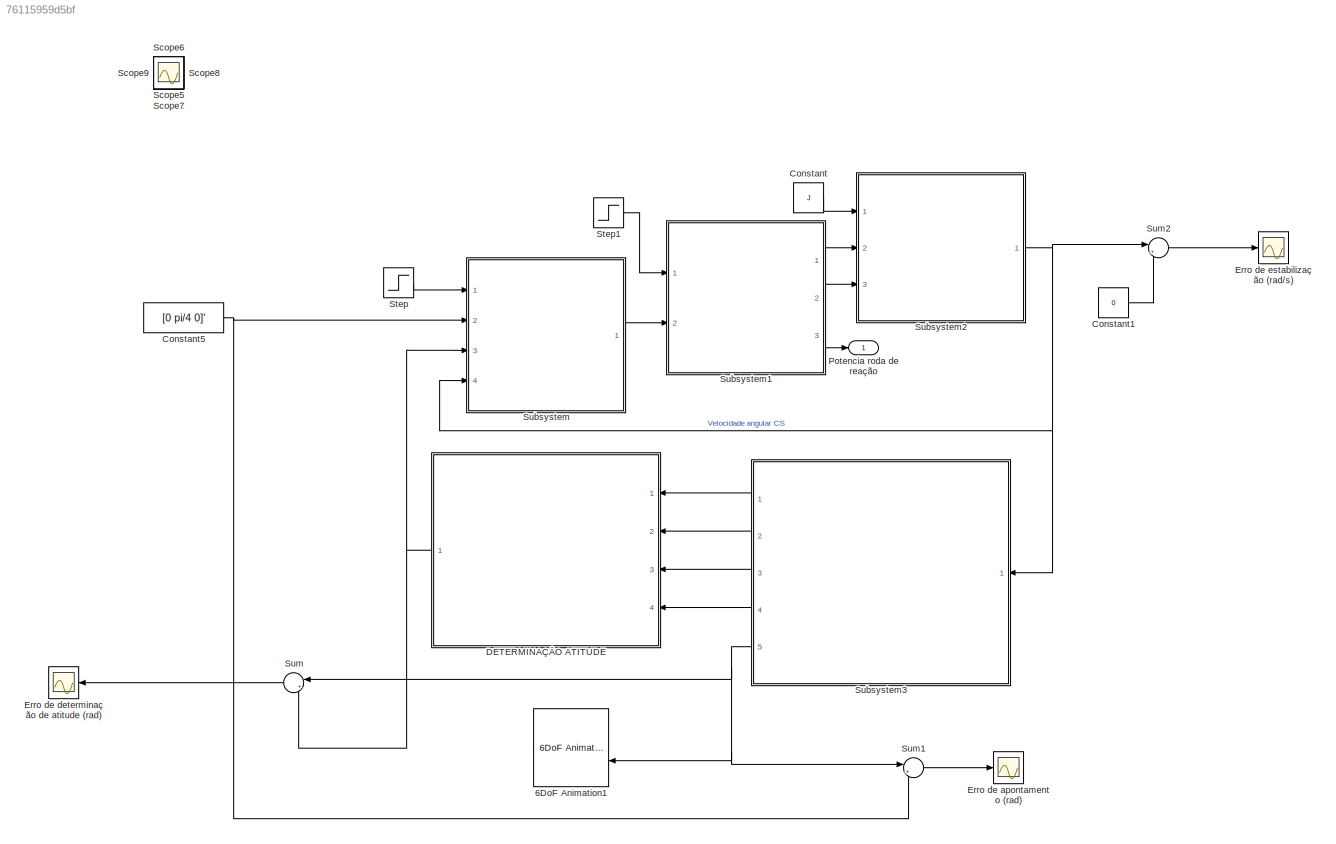
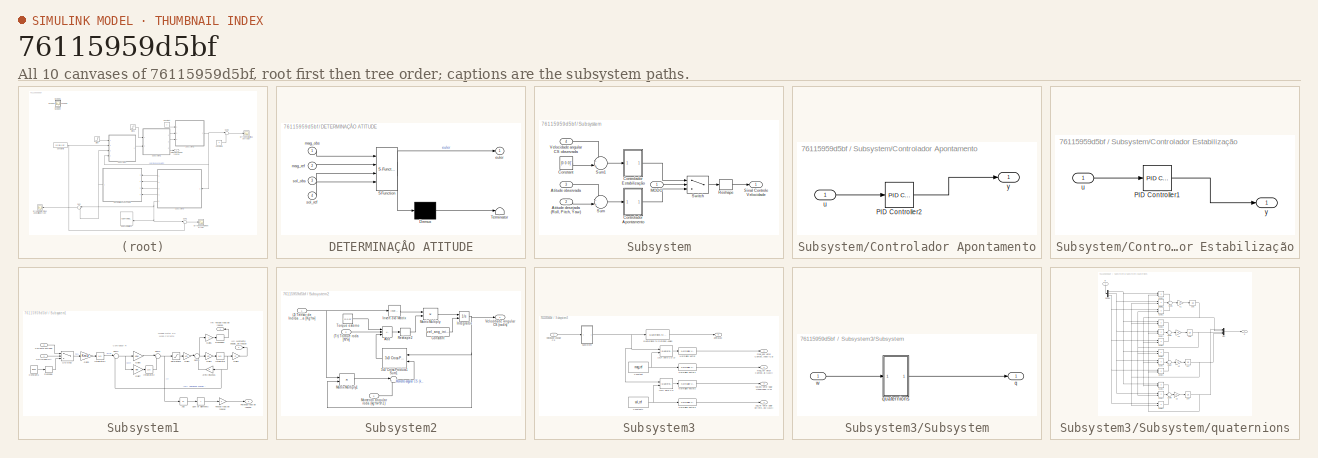
[diagram: thumbnail index - all 10 canvases of the model, root first then tree order]
MODEL slx_76115959d5bf
KIND model
CONFIG AbsTol = auto
CONFIG EnableMultiTasking = off
CONFIG FixedStep = auto
CONFIG MaxStep = auto
CONFIG MinStep = auto
CONFIG RelTol = 1e-4
CONFIG SampleTimeConstraint = Unconstrained
CONFIG SolverName = ode23t
CONFIG StartTime = 0.0
CONFIG StopTime = 250
BLOCK [Reference] 6DoF Animation1  REF=aerolibanim/6DoF Animation
  Commented = on
  Ports = [2]
  SourceBlock = aerolibanim/6DoF Animation
  SourceProductBaseCode = AE
  SourceType = 6DoF_Animation
BLOCK [Constant] Constant
  Value = J
BLOCK [Constant] Constant1
  Value = 0
BLOCK [Constant] Constant5
  Value = [0 pi/4 0]'
BLOCK [SubSystem] DETERMINAÇÂO ATITUDE
  ErrorFcn = Stateflow.Translate.translate
  PermitHierarchicalResolution = ExplicitOnly
  Ports = [4, 1]
  RequestExecContextInheritance = off
  SFBlockType = MATLAB Function
  SystemSampleTime = 1e-1
  TreatAsAtomicUnit = on
BLOCK [Demux] DETERMINAÇÂO ATITUDE/ Demux 
  Outputs = 1
  Ports = [1, 1]
BLOCK [S-Function] DETERMINAÇÂO ATITUDE/ SFunction 
  EnableBusSupport = on
  FunctionName = sf_sfun
  PortCounts = [4 2]
  Ports = [4, 2]
  SFcnIsStateOwnerBlock = off
  SFunctionDeploymentMode = off
  Tag = Stateflow S-Function 1
BLOCK [Terminator] DETERMINAÇÂO ATITUDE/ Terminator 
BLOCK [Outport] DETERMINAÇÂO ATITUDE/euler
BLOCK [Inport] DETERMINAÇÂO ATITUDE/mag_obs
BLOCK [Inport] DETERMINAÇÂO ATITUDE/mag_ref
  Port = 2
BLOCK [Inport] DETERMINAÇÂO ATITUDE/sol_obs
  Port = 3
BLOCK [Inport] DETERMINAÇÂO ATITUDE/sol_ref
  Port = 4
BLOCK [Scope] Erro de apontamento (rad)
  Floating = off
  NumInputPorts = 1
  Ports = [1]
  ScopeSpecificationString = Simulink.scopes.TimeScopeBlockCfg('CurrentConfiguration', extmgr.ConfigurationSet(extmgr.Configuration('Core','General UI',true),extmgr.Configuration('Core','Source UI',true),extmgr.Configuration('Sources','WiredSimulink',true,'DataLoggingVariableName','ScopeData1'),extmgr.Configuration('Visuals','Time Domain',true,'SerializedDisplays',{struct('MinYLimReal','-0.000056','MaxYLimReal','-0.000001','Y...<+1441ch>
BLOCK [Scope] Erro de determinação de atitude (rad)
  Floating = off
  NumInputPorts = 1
  Ports = [1]
  ScopeSpecificationString = Simulink.scopes.TimeScopeBlockCfg('CurrentConfiguration', extmgr.ConfigurationSet(extmgr.Configuration('Core','General UI',true),extmgr.Configuration('Core','Source UI',true),extmgr.Configuration('Sources','WiredSimulink',true,'DataLoggingVariableName','ScopeData4'),extmgr.Configuration('Visuals','Time Domain',true,'SerializedDisplays',{struct('MinYLimReal','-0.01352','MaxYLimReal','0.01986','YLab...<+1914ch>
BLOCK [Scope] Erro de estabilização (rad//s)
  Floating = off
  NumInputPorts = 1
  Ports = [1]
  ScopeSpecificationString = Simulink.scopes.TimeScopeBlockCfg('CurrentConfiguration', extmgr.ConfigurationSet(extmgr.Configuration('Core','General UI',true),extmgr.Configuration('Core','Source UI',true),extmgr.Configuration('Sources','WiredSimulink',true,'DataLoggingVariableName','ScopeData2'),extmgr.Configuration('Visuals','Time Domain',true,'SerializedDisplays',{struct('MinYLimReal','-0.14671','MaxYLimReal','0.21035','YLab...<+1779ch>
BLOCK [Outport] Potencia roda de reação
BLOCK [Scope] Scope
  Floating = off
  IOType = viewer
  NumInputPorts = 1
  Ports = []
  ScopeSpecificationString = Simulink.scopes.TimeScopeBlockCfg('CurrentConfiguration', extmgr.ConfigurationSet(extmgr.Configuration('Core','General UI',true),extmgr.Configuration('Core','Source UI',true),extmgr.Configuration('Sources','WiredSimulink',true),extmgr.Configuration('Visuals','Time Domain',true,'SerializedDisplays',{struct('MinYLimReal','0.785384','MaxYLimReal','0.7854','YLabelReal','','MinYLimMag','0.785384','MaxY...<+1853ch>
BLOCK [Scope] Scope1
  Floating = off
  IOType = viewer
  NumInputPorts = 1
  Ports = []
  ScopeSpecificationString = Simulink.scopes.TimeScopeBlockCfg('CurrentConfiguration', extmgr.ConfigurationSet(extmgr.Configuration('Core','General UI',true),extmgr.Configuration('Core','Source UI',true),extmgr.Configuration('Sources','WiredSimulink',true,'DataLoggingVariableName','ScopeData1'),extmgr.Configuration('Visuals','Time Domain',true,'SerializedDisplays',{struct('MinYLimReal','-0.09817','MaxYLimReal','0.88357','YLab...<+1405ch>
BLOCK [Scope] Scope2
  Floating = off
  IOType = viewer
  NumInputPorts = 1
  Ports = []
  ScopeSpecificationString = Simulink.scopes.TimeScopeBlockCfg('CurrentConfiguration', extmgr.ConfigurationSet(extmgr.Configuration('Core','General UI',true),extmgr.Configuration('Core','Source UI',true),extmgr.Configuration('Sources','WiredSimulink',true,'DataLoggingVariableName','ScopeData2'),extmgr.Configuration('Visuals','Time Domain',true,'SerializedDisplays',{struct('MinYLimReal','-0.05264','MaxYLimReal','0.09296','YLab...<+1833ch>
BLOCK [Scope] Scope3
  Floating = off
  IOType = viewer
  NumInputPorts = 1
  Ports = []
  ScopeSpecificationString = Simulink.scopes.TimeScopeBlockCfg('CurrentConfiguration', extmgr.ConfigurationSet(extmgr.Configuration('Core','General UI',true),extmgr.Configuration('Core','Source UI',true),extmgr.Configuration('Sources','WiredSimulink',true,'DataLoggingVariableName','ScopeData3'),extmgr.Configuration('Visuals','Time Domain',true,'SerializedDisplays',{struct('MinYLimReal','-0.00128','MaxYLimReal','0.00322','YLab...<+1432ch>
BLOCK [Scope] Scope4
  Floating = off
  IOType = viewer
  NumInputPorts = 1
  Ports = []
  ScopeSpecificationString = Simulink.scopes.TimeScopeBlockCfg('CurrentConfiguration', extmgr.ConfigurationSet(extmgr.Configuration('Core','General UI',true),extmgr.Configuration('Core','Source UI',true),extmgr.Configuration('Sources','WiredSimulink',true,'DataLoggingVariableName','ScopeData4'),extmgr.Configuration('Visuals','Time Domain',true,'SerializedDisplays',{struct('MinYLimReal','-0.00046','MaxYLimReal','0.00047','YLab...<+1432ch>
BLOCK [Scope] Scope5
  Floating = off
  IOType = viewer
  NumInputPorts = 1
  Ports = []
  ScopeSpecificationString = Simulink.scopes.TimeScopeBlockCfg('CurrentConfiguration', extmgr.ConfigurationSet(extmgr.Configuration('Core','General UI',true),extmgr.Configuration('Core','Source UI',true),extmgr.Configuration('Sources','WiredSimulink',true,'DataLoggingVariableName','ScopeData5'),extmgr.Configuration('Visuals','Time Domain',true,'SerializedDisplays',{struct('MinYLimReal','-3.9236','MaxYLimReal','3.92331','YLabe...<+1836ch>
BLOCK [Scope] Scope6
  Floating = off
  IOType = viewer
  NumInputPorts = 1
  Ports = []
  ScopeSpecificationString = Simulink.scopes.TimeScopeBlockCfg('CurrentConfiguration', extmgr.ConfigurationSet(extmgr.Configuration('Core','General UI',true),extmgr.Configuration('Core','Source UI',true),extmgr.Configuration('Sources','WiredSimulink',true,'DataLoggingVariableName','ScopeData6'),extmgr.Configuration('Visuals','Time Domain',true,'SerializedDisplays',{struct('MinYLimReal','-0.125','MaxYLimReal','1.125','YLabelRe...<+1351ch>
BLOCK [Scope] Scope7
  Floating = off
  IOType = viewer
  NumInputPorts = 1
  Ports = []
  ScopeSpecificationString = Simulink.scopes.TimeScopeBlockCfg('CurrentConfiguration', extmgr.ConfigurationSet(extmgr.Configuration('Core','General UI',true),extmgr.Configuration('Core','Source UI',true),extmgr.Configuration('Sources','WiredSimulink',true,'DataLoggingVariableName','ScopeData7'),extmgr.Configuration('Visuals','Time Domain',true,'SerializedDisplays',{struct('MinYLimReal','-0.14575','MaxYLimReal','0.20176','YLab...<+1813ch>
BLOCK [Scope] Scope8
  Floating = off
  IOType = viewer
  NumInputPorts = 1
  Ports = []
  ScopeSpecificationString = Simulink.scopes.TimeScopeBlockCfg('CurrentConfiguration', extmgr.ConfigurationSet(extmgr.Configuration('Core','General UI',true),extmgr.Configuration('Core','Source UI',true),extmgr.Configuration('Sources','WiredSimulink',true,'DataLoggingVariableName','ScopeData8'),extmgr.Configuration('Visuals','Time Domain',true,'SerializedDisplays',{struct('MinYLimReal','-7.79949','MaxYLimReal','7.84291','YLab...<+1436ch>
BLOCK [Scope] Scope9
  Floating = off
  IOType = viewer
  NumInputPorts = 1
  Ports = []
  ScopeSpecificationString = Simulink.scopes.TimeScopeBlockCfg('CurrentConfiguration', extmgr.ConfigurationSet(extmgr.Configuration('Core','General UI',true),extmgr.Configuration('Core','Source UI',true),extmgr.Configuration('Sources','WiredSimulink',true,'DataLoggingVariableName','ScopeData9'),extmgr.Configuration('Visuals','Time Domain',true,'SerializedDisplays',{struct('MinYLimReal','-0.12353','MaxYLimReal','0.06036','YLab...<+1429ch>
BLOCK [Step] Step
  After = 0
  Before = 1
  SampleTime = 0
  Time = 130
BLOCK [Step] Step1
  SampleTime = 0
  Time = 10
BLOCK [SubSystem] Subsystem
  Ports = [4, 1]
  RequestExecContextInheritance = off
BLOCK [Inport] Subsystem/Atitude desejada (Roll, Pitch, Yaw)
  Port = 2
BLOCK [Inport] Subsystem/Atitude observada
  Port = 3
BLOCK [Constant] Subsystem/Constant
  Value = [0 0 0]'
BLOCK [SubSystem] Subsystem/Controlador Apontamento
  Ports = [1, 1]
  RequestExecContextInheritance = off
BLOCK [Reference] Subsystem/Controlador Apontamento/PID Controller2  REF=pid_lib/PID Controller
  Ports = [1, 1]
  SourceBlock = pid_lib/PID Controller
  SourceProductBaseCode = SL
  SourceType = PID 1dof
BLOCK [Inport] Subsystem/Controlador Apontamento/u
BLOCK [Outport] Subsystem/Controlador Apontamento/y
BLOCK [SubSystem] Subsystem/Controlador Estabilização
  Ports = [1, 1]
  RequestExecContextInheritance = off
BLOCK [Reference] Subsystem/Controlador Estabilização/PID Controller1  REF=pid_lib/PID Controller
  Ports = [1, 1]
  SourceBlock = pid_lib/PID Controller
  SourceProductBaseCode = SL
  SourceType = PID 1dof
BLOCK [Inport] Subsystem/Controlador Estabilização/u
BLOCK [Outport] Subsystem/Controlador Estabilização/y
BLOCK [Inport] Subsystem/MODO
BLOCK [Reshape] Subsystem/Reshape
  OutputDimensionality = Column vector (2-D)
  Ports = [1, 1]
BLOCK [Outport] Subsystem/Sinal Controle Velocidade
BLOCK [Sum] Subsystem/Sum
  Inputs = -+|
  Ports = [2, 1]
BLOCK [Sum] Subsystem/Sum1
  Inputs = -+|
  Ports = [2, 1]
BLOCK [Switch] Subsystem/Switch
  Criteria = u2 > Threshold
  InputSameDT = off
  SaturateOnIntegerOverflow = off
BLOCK [Inport] Subsystem/Velocidade angular CS observada
  Port = 4
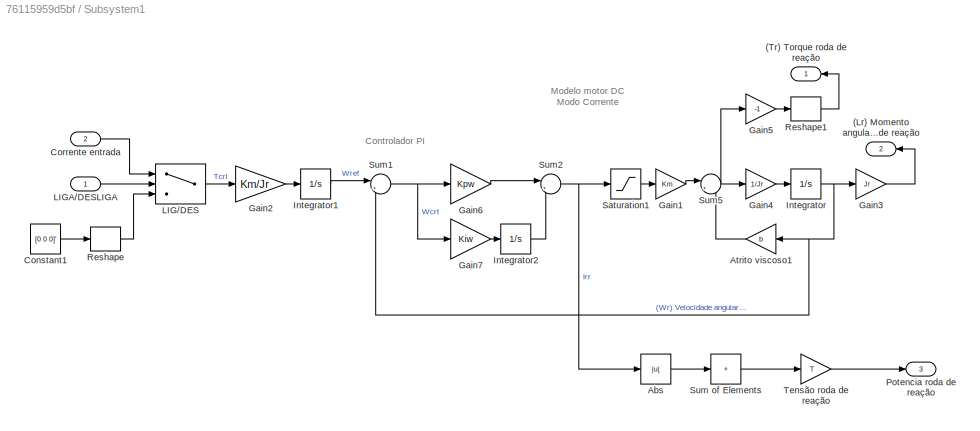
BLOCK [SubSystem] Subsystem1
  Ports = [2, 3]
  RequestExecContextInheritance = off
BLOCK [Outport] Subsystem1/(Lr) Momento angular roda de reação
  NameLocation = top
  Port = 2
BLOCK [Outport] Subsystem1/(Tr) Torque roda de reação
  NameLocation = top
BLOCK [Abs] Subsystem1/Abs
  SaturateOnIntegerOverflow = off
BLOCK [Gain] Subsystem1/Atrito viscoso1
  Gain = b
BLOCK [Constant] Subsystem1/Constant1
  Value = [0 0 0]'
BLOCK [Inport] Subsystem1/Corrente entrada
  Port = 2
BLOCK [Gain] Subsystem1/Gain1
  Gain = Km
BLOCK [Gain] Subsystem1/Gain2
  Gain = Km/Jr
BLOCK [Gain] Subsystem1/Gain3
  Gain = Jr
BLOCK [Gain] Subsystem1/Gain4
  Gain = 1/Jr
BLOCK [Gain] Subsystem1/Gain5
  Gain = -1
BLOCK [Gain] Subsystem1/Gain6
  Gain = Kpw
BLOCK [Gain] Subsystem1/Gain7
  Gain = Kiw
BLOCK [Integrator] Subsystem1/Integrator
  Ports = [1, 1]
BLOCK [Integrator] Subsystem1/Integrator1
  Ports = [1, 1]
BLOCK [Integrator] Subsystem1/Integrator2
  Ports = [1, 1]
BLOCK [Switch] Subsystem1/LIG//DES
  Criteria = u2 > Threshold
  InputSameDT = off
  SaturateOnIntegerOverflow = off
BLOCK [Inport] Subsystem1/LIGA//DESLIGA
BLOCK [Outport] Subsystem1/Potencia roda de reação
  Port = 3
BLOCK [Reshape] Subsystem1/Reshape
  OutputDimensionality = Column vector (2-D)
  Ports = [1, 1]
BLOCK [Reshape] Subsystem1/Reshape1
  NameLocation = top
  OutputDimensionality = Column vector (2-D)
  Ports = [1, 1]
BLOCK [Saturate] Subsystem1/Saturation1
  ZeroCross = off
BLOCK [Sum] Subsystem1/Sum of Elements
  IconShape = rectangular
  Inputs = +
  Ports = [1, 1]
BLOCK [Sum] Subsystem1/Sum1
  Inputs = |+-
  Ports = [2, 1]
BLOCK [Sum] Subsystem1/Sum2
  Inputs = |++
  Ports = [2, 1]
BLOCK [Sum] Subsystem1/Sum5
  Inputs = |+-
  Ports = [2, 1]
BLOCK [Gain] Subsystem1/Tensão roda de reação
  Gain = T
BLOCK [SubSystem] Subsystem2
  Ports = [3, 1]
  RequestExecContextInheritance = off
BLOCK [Inport] Subsystem2/(J) Tensor de Inercia Satélite + roda [Kg*m²]
BLOCK [Inport] Subsystem2/(Tr) Torque roda  [N*m]
  Port = 2
  Unit = (kg*m*m)/s
BLOCK [Reference] Subsystem2/3x3 Cross Product1  REF=sharedutil/3x3 Cross Product
  Ports = [2, 1]
  SourceBlock = sharedutil/3x3 Cross Product
  SourceProductBaseCode = AE,PW,MT,UV,VE,VP
  SourceType = CrossProduct
BLOCK [Sum] Subsystem2/Add
  IconShape = rectangular
  Inputs = +--
  Ports = [3, 1]
BLOCK [Constant] Subsystem2/Constant
  Value = vel_ang_inicial
BLOCK [Integrator] Subsystem2/Integrator
  InitialConditionSource = external
  Ports = [2, 1]
BLOCK [Reference] Subsystem2/Invert 3x3 Matrix  REF=aerolibutil/Invert 
3x3 Matrix
  Ports = [1, 1]
  SourceBlock = aerolibutil/Invert \n3x3 Matrix
  SourceProductBaseCode = AE
  SourceType = Invert 3x3 Matrix
BLOCK [Product] Subsystem2/Matrix Multiply
  Multiplication = Matrix(*)
  Ports = [2, 1]
BLOCK [Product] Subsystem2/Matrix Multiply1
  Multiplication = Matrix(*)
  Ports = [2, 1]
BLOCK [Inport] Subsystem2/Momento angular roda  (kg*m²*s^-1)
  Port = 3
  Unit = (kg*m*m)/s
BLOCK [Reshape] Subsystem2/Reshape2
  NameLocation = top
  OutputDimensionality = Column vector (2-D)
  Ports = [1, 1]
BLOCK [Sum] Subsystem2/Sum1
  Inputs = |++
  NameLocation = top
  Ports = [2, 1]
BLOCK [Constant] Subsystem2/Torque externo
  Value = [0 0 0]'
BLOCK [Outport] Subsystem2/Velocidade angular CS (rad//s)
BLOCK [SubSystem] Subsystem3
  NameLocation = top
  Ports = [1, 5]
  RequestExecContextInheritance = off
BLOCK [Constant] Subsystem3/Constant
  Value = mag_ref
BLOCK [Constant] Subsystem3/Constant1
  Value = sol_ref
BLOCK [Reference] Subsystem3/LVLH para CS  REF=aerolibutil/Quaternion
Rotation
  Ports = [2, 1]
  SourceBlock = aerolibutil/Quaternion\nRotation
  SourceProductBaseCode = AE
  SourceType = Quaternion Rotation
BLOCK [Reference] Subsystem3/LVLH para CS (2)  REF=aerolibutil/Quaternion
Rotation
  Ports = [2, 1]
  SourceBlock = aerolibutil/Quaternion\nRotation
  SourceProductBaseCode = AE
  SourceType = Quaternion Rotation
BLOCK [Reference] Subsystem3/Normalize Vector  REF=vrlib/Utilities/Normalize Vector
  Ports = [1, 1]
  SourceBlock = vrlib/Utilities/Normalize Vector
  SourceProductBaseCode = SL
  SourceType = Normalize Vector
BLOCK [Reference] Subsystem3/Normalize Vector1  REF=vrlib/Utilities/Normalize Vector
  Ports = [1, 1]
  SourceBlock = vrlib/Utilities/Normalize Vector
  SourceProductBaseCode = SL
  SourceType = Normalize Vector
BLOCK [Reference] Subsystem3/Normalize Vector2  REF=vrlib/Utilities/Normalize Vector
  Ports = [1, 1]
  SourceBlock = vrlib/Utilities/Normalize Vector
  SourceProductBaseCode = SL
  SourceType = Normalize Vector
BLOCK [Reference] Subsystem3/Normalize Vector3  REF=vrlib/Utilities/Normalize Vector
  Ports = [1, 1]
  SourceBlock = vrlib/Utilities/Normalize Vector
  SourceProductBaseCode = SL
  SourceType = Normalize Vector
BLOCK [Reference] Subsystem3/Quaternions to Rotation Angles  REF=sharedtransform/Quaternions to Rotation Angles
  AttributesFormatString = Rotation Order: %<rotationOrder>
  Ports = [1, 1]
  SourceBlock = sharedtransform/Quaternions to Rotation Angles
  SourceProductBaseCode = AE,PW,MT,UV,VE,VP
  SourceType = Quat2Ang
BLOCK [SubSystem] Subsystem3/Subsystem
  Ports = [1, 1]
  RequestExecContextInheritance = off
BLOCK [Outport] Subsystem3/Subsystem/q
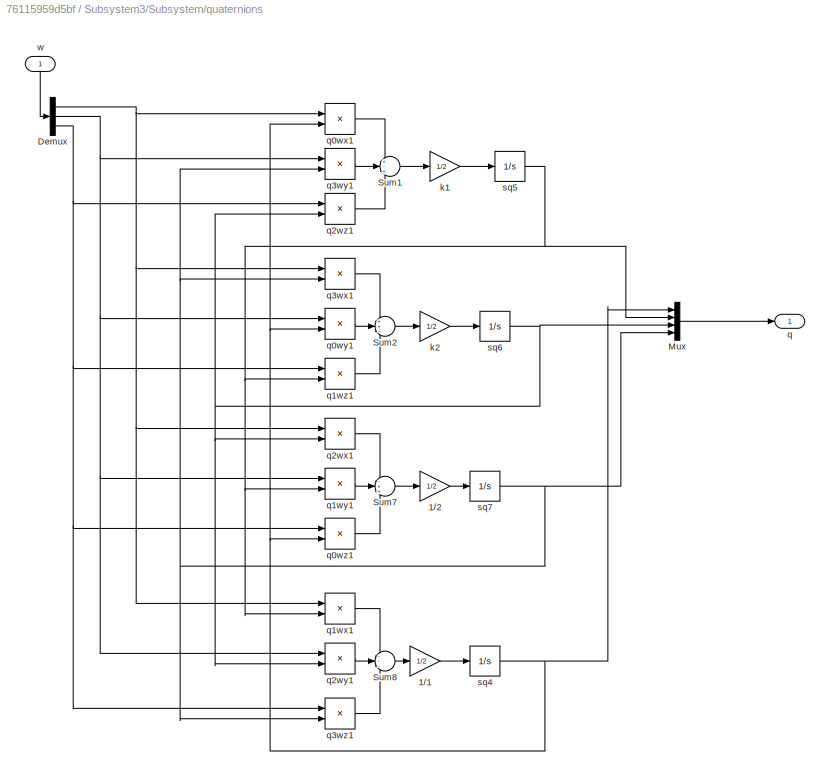
BLOCK [SubSystem] Subsystem3/Subsystem/quaternions
  Ports = [1, 1]
  RequestExecContextInheritance = off
BLOCK [Gain] Subsystem3/Subsystem/quaternions/1//1
  Gain = 1/2
BLOCK [Gain] Subsystem3/Subsystem/quaternions/1//2
  Gain = 1/2
BLOCK [Demux] Subsystem3/Subsystem/quaternions/Demux
  Outputs = 3
  Ports = [1, 3]
BLOCK [Mux] Subsystem3/Subsystem/quaternions/Mux
  DisplayOption = bar
  Ports = [4, 1]
BLOCK [Sum] Subsystem3/Subsystem/quaternions/Sum1
  Inputs = +-+
  Ports = [3, 1]
BLOCK [Sum] Subsystem3/Subsystem/quaternions/Sum2
  Inputs = ++-
  Ports = [3, 1]
BLOCK [Sum] Subsystem3/Subsystem/quaternions/Sum7
  Inputs = -++
  Ports = [3, 1]
BLOCK [Sum] Subsystem3/Subsystem/quaternions/Sum8
  Inputs = ---
  Ports = [3, 1]
BLOCK [Gain] Subsystem3/Subsystem/quaternions/k1
  Gain = 1/2
BLOCK [Gain] Subsystem3/Subsystem/quaternions/k2
  Gain = 1/2
BLOCK [Outport] Subsystem3/Subsystem/quaternions/q
BLOCK [Product] Subsystem3/Subsystem/quaternions/q0wx1
  Ports = [2, 1]
  RndMeth = Zero
BLOCK [Product] Subsystem3/Subsystem/quaternions/q0wy1
  Ports = [2, 1]
  RndMeth = Zero
BLOCK [Product] Subsystem3/Subsystem/quaternions/q0wz1
  Ports = [2, 1]
  RndMeth = Zero
BLOCK [Product] Subsystem3/Subsystem/quaternions/q1wx1
  Ports = [2, 1]
  RndMeth = Zero
BLOCK [Product] Subsystem3/Subsystem/quaternions/q1wy1
  Ports = [2, 1]
  RndMeth = Zero
BLOCK [Product] Subsystem3/Subsystem/quaternions/q1wz1
  Ports = [2, 1]
  RndMeth = Zero
BLOCK [Product] Subsystem3/Subsystem/quaternions/q2wx1
  Ports = [2, 1]
  RndMeth = Zero
BLOCK [Product] Subsystem3/Subsystem/quaternions/q2wy1
  Ports = [2, 1]
  RndMeth = Zero
BLOCK [Product] Subsystem3/Subsystem/quaternions/q2wz1
  Ports = [2, 1]
  RndMeth = Zero
BLOCK [Product] Subsystem3/Subsystem/quaternions/q3wx1
  Ports = [2, 1]
  RndMeth = Zero
BLOCK [Product] Subsystem3/Subsystem/quaternions/q3wy1
  Ports = [2, 1]
  RndMeth = Zero
BLOCK [Product] Subsystem3/Subsystem/quaternions/q3wz1
  Ports = [2, 1]
  RndMeth = Zero
BLOCK [Integrator] Subsystem3/Subsystem/quaternions/sq4
  InitialCondition = 1
  Ports = [1, 1]
BLOCK [Integrator] Subsystem3/Subsystem/quaternions/sq5
  Ports = [1, 1]
BLOCK [Integrator] Subsystem3/Subsystem/quaternions/sq6
  Ports = [1, 1]
BLOCK [Integrator] Subsystem3/Subsystem/quaternions/sq7
  Ports = [1, 1]
BLOCK [Inport] Subsystem3/Subsystem/quaternions/w
  NameLocation = right
BLOCK [Inport] Subsystem3/Subsystem/w
BLOCK [Inport] Subsystem3/Velocidade angular CS
BLOCK [Outport] Subsystem3/animacao
  Port = 5
BLOCK [Outport] Subsystem3/mag_obs Vetor Campo magnético Observado (CS)
BLOCK [Outport] Subsystem3/mag_ref Vetor Campo magnético de referencia (LVLH) 
  Port = 2
BLOCK [Outport] Subsystem3/sol_obs Vetor Solar Observado (CS)
  Port = 3
BLOCK [Outport] Subsystem3/sol_ref Vetor Solar de referencia (LVLH)
  Port = 4
BLOCK [Sum] Sum
  Inputs = |+-
  Ports = [2, 1]
BLOCK [Sum] Sum1
  Inputs = |+-
  Ports = [2, 1]
BLOCK [Sum] Sum2
  Inputs = |+-
  Ports = [2, 1]
ANNOTATION Subsystem1: Controlador PI
ANNOTATION Subsystem1: Modelo motor DC Modo Corrente
LINE Constant1:1 -> Sum2:2
NET Constant5:1 -> Subsystem:2, Sum1:2
LINE Constant:1 -> Subsystem2:1
NET DETERMINAÇÂO ATITUDE:1 -> Subsystem:3, Sum:2
LINE Step1:1 -> Subsystem1:1
LINE Step:1 -> Subsystem:1
LINE Subsystem/Atitude desejada (Roll, Pitch, Yaw):1 -> Subsystem/Sum:2
LINE Subsystem/Atitude observada:1 -> Subsystem/Sum:1
LINE Subsystem/Constant:1 -> Subsystem/Sum1:2
LINE Subsystem/Controlador Apontamento/PID Controller2:1 -> Subsystem/Controlador Apontamento/y:1
LINE Subsystem/Controlador Apontamento/u:1 -> Subsystem/Controlador Apontamento/PID Controller2:1
LINE Subsystem/Controlador Apontamento:1 -> Subsystem/Switch:3
LINE Subsystem/Controlador Estabilização/PID Controller1:1 -> Subsystem/Controlador Estabilização/y:1
LINE Subsystem/Controlador Estabilização/u:1 -> Subsystem/Controlador Estabilização/PID Controller1:1
LINE Subsystem/Controlador Estabilização:1 -> Subsystem/Switch:1
LINE Subsystem/MODO:1 -> Subsystem/Switch:2
LINE Subsystem/Reshape:1 -> Subsystem/Sinal Controle Velocidade:1
LINE Subsystem/Sum1:1 -> Subsystem/Controlador Estabilização:1
LINE Subsystem/Sum:1 -> Subsystem/Controlador Apontamento:1
LINE Subsystem/Switch:1 -> Subsystem/Reshape:1
LINE Subsystem/Velocidade angular CS observada:1 -> Subsystem/Sum1:1
LINE Subsystem1/Abs:1 -> Subsystem1/Sum of Elements:1
LINE Subsystem1/Atrito viscoso1:1 -> Subsystem1/Sum5:2
LINE Subsystem1/Constant1:1 -> Subsystem1/Reshape:1
LINE Subsystem1/Corrente entrada:1 -> Subsystem1/LIG//DES:1
LINE Subsystem1/Gain1:1 -> Subsystem1/Sum5:1
LINE Subsystem1/Gain2:1 -> Subsystem1/Integrator1:1
LINE Subsystem1/Gain3:1 -> Subsystem1/(Lr) Momento angular roda de reação:1
LINE Subsystem1/Gain4:1 -> Subsystem1/Integrator:1
LINE Subsystem1/Gain5:1 -> Subsystem1/Reshape1:1
LINE Subsystem1/Gain6:1 -> Subsystem1/Sum2:1
LINE Subsystem1/Gain7:1 -> Subsystem1/Integrator2:1
LINE Subsystem1/Integrator1:1 -> Subsystem1/Sum1:1
LINE Subsystem1/Integrator2:1 -> Subsystem1/Sum2:2
NET Subsystem1/Integrator:1 -> Subsystem1/Atrito viscoso1:1, Subsystem1/Gain3:1, Subsystem1/Sum1:2
LINE Subsystem1/LIG//DES:1 -> Subsystem1/Gain2:1
LINE Subsystem1/LIGA//DESLIGA:1 -> Subsystem1/LIG//DES:2
LINE Subsystem1/Reshape1:1 -> Subsystem1/(Tr) Torque roda de reação:1
LINE Subsystem1/Reshape:1 -> Subsystem1/LIG//DES:3
LINE Subsystem1/Saturation1:1 -> Subsystem1/Gain1:1
LINE Subsystem1/Sum of Elements:1 -> Subsystem1/Tensão roda de reação:1
NET Subsystem1/Sum1:1 -> Subsystem1/Gain6:1, Subsystem1/Gain7:1
NET Subsystem1/Sum2:1 -> Subsystem1/Abs:1, Subsystem1/Saturation1:1
NET Subsystem1/Sum5:1 -> Subsystem1/Gain4:1, Subsystem1/Gain5:1
LINE Subsystem1/Tensão roda de reação:1 -> Subsystem1/Potencia roda de reação:1
LINE Subsystem1:1 -> Subsystem2:2
LINE Subsystem1:2 -> Subsystem2:3
LINE Subsystem1:3 -> Potencia roda de reação:1
NET Subsystem2/(J) Tensor de Inercia Satélite + roda [Kg*m²]:1 -> Subsystem2/Invert 3x3 Matrix:1, Subsystem2/Matrix Multiply1:1
LINE Subsystem2/(Tr) Torque roda  [N*m]:1 -> Subsystem2/Add:2
LINE Subsystem2/3x3 Cross Product1:1 -> Subsystem2/Add:3
LINE Subsystem2/Add:1 -> Subsystem2/Reshape2:1
LINE Subsystem2/Constant:1 -> Subsystem2/Integrator:2
NET Subsystem2/Integrator:1 -> Subsystem2/3x3 Cross Product1:1, Subsystem2/Matrix Multiply1:2, Subsystem2/Velocidade angular CS (rad//s):1
LINE Subsystem2/Invert 3x3 Matrix:1 -> Subsystem2/Matrix Multiply:1
LINE Subsystem2/Matrix Multiply1:1 -> Subsystem2/Sum1:1
LINE Subsystem2/Matrix Multiply:1 -> Subsystem2/Integrator:1
LINE Subsystem2/Momento angular roda  (kg*m²*s^-1):1 -> Subsystem2/Sum1:2
LINE Subsystem2/Reshape2:1 -> Subsystem2/Matrix Multiply:2
LINE Subsystem2/Sum1:1 -> Subsystem2/3x3 Cross Product1:2
LINE Subsystem2/Torque externo:1 -> Subsystem2/Add:1
NET Subsystem2:1 -> Subsystem3:1, Subsystem:4, Sum2:1
NET Subsystem3/Constant1:1 -> Subsystem3/LVLH para CS:2, Subsystem3/Normalize Vector3:1
NET Subsystem3/Constant:1 -> Subsystem3/LVLH para CS (2):2, Subsystem3/Normalize Vector1:1
LINE Subsystem3/LVLH para CS (2):1 -> Subsystem3/Normalize Vector:1
LINE Subsystem3/LVLH para CS:1 -> Subsystem3/Normalize Vector2:1
LINE Subsystem3/Normalize Vector1:1 -> Subsystem3/mag_ref Vetor Campo magnético de referencia (LVLH) :1
LINE Subsystem3/Normalize Vector2:1 -> Subsystem3/sol_obs Vetor Solar Observado (CS):1
LINE Subsystem3/Normalize Vector3:1 -> Subsystem3/sol_ref Vetor Solar de referencia (LVLH):1
LINE Subsystem3/Normalize Vector:1 -> Subsystem3/mag_obs Vetor Campo magnético Observado (CS):1
LINE Subsystem3/Quaternions to Rotation Angles:1 -> Subsystem3/animacao:1
LINE Subsystem3/Subsystem/quaternions/1//1:1 -> Subsystem3/Subsystem/quaternions/sq4:1
LINE Subsystem3/Subsystem/quaternions/1//2:1 -> Subsystem3/Subsystem/quaternions/sq7:1
NET Subsystem3/Subsystem/quaternions/Demux:1 -> Subsystem3/Subsystem/quaternions/q0wx1:1, Subsystem3/Subsystem/quaternions/q1wx1:1, Subsystem3/Subsystem/quaternions/q2wx1:1, Subsystem3/Subsystem/quaternions/q3wx1:1
NET Subsystem3/Subsystem/quaternions/Demux:2 -> Subsystem3/Subsystem/quaternions/q0wy1:1, Subsystem3/Subsystem/quaternions/q1wy1:1, Subsystem3/Subsystem/quaternions/q2wy1:1, Subsystem3/Subsystem/quaternions/q3wy1:1
NET Subsystem3/Subsystem/quaternions/Demux:3 -> Subsystem3/Subsystem/quaternions/q0wz1:1, Subsystem3/Subsystem/quaternions/q1wz1:1, Subsystem3/Subsystem/quaternions/q2wz1:1, Subsystem3/Subsystem/quaternions/q3wz1:1
LINE Subsystem3/Subsystem/quaternions/Mux:1 -> Subsystem3/Subsystem/quaternions/q:1
LINE Subsystem3/Subsystem/quaternions/Sum1:1 -> Subsystem3/Subsystem/quaternions/k1:1
LINE Subsystem3/Subsystem/quaternions/Sum2:1 -> Subsystem3/Subsystem/quaternions/k2:1
LINE Subsystem3/Subsystem/quaternions/Sum7:1 -> Subsystem3/Subsystem/quaternions/1//2:1
LINE Subsystem3/Subsystem/quaternions/Sum8:1 -> Subsystem3/Subsystem/quaternions/1//1:1
LINE Subsystem3/Subsystem/quaternions/k1:1 -> Subsystem3/Subsystem/quaternions/sq5:1
LINE Subsystem3/Subsystem/quaternions/k2:1 -> Subsystem3/Subsystem/quaternions/sq6:1
LINE Subsystem3/Subsystem/quaternions/q0wx1:1 -> Subsystem3/Subsystem/quaternions/Sum1:1
LINE Subsystem3/Subsystem/quaternions/q0wy1:1 -> Subsystem3/Subsystem/quaternions/Sum2:2
LINE Subsystem3/Subsystem/quaternions/q0wz1:1 -> Subsystem3/Subsystem/quaternions/Sum7:3
LINE Subsystem3/Subsystem/quaternions/q1wx1:1 -> Subsystem3/Subsystem/quaternions/Sum8:1
LINE Subsystem3/Subsystem/quaternions/q1wy1:1 -> Subsystem3/Subsystem/quaternions/Sum7:2
LINE Subsystem3/Subsystem/quaternions/q1wz1:1 -> Subsystem3/Subsystem/quaternions/Sum2:3
LINE Subsystem3/Subsystem/quaternions/q2wx1:1 -> Subsystem3/Subsystem/quaternions/Sum7:1
LINE Subsystem3/Subsystem/quaternions/q2wy1:1 -> Subsystem3/Subsystem/quaternions/Sum8:2
LINE Subsystem3/Subsystem/quaternions/q2wz1:1 -> Subsystem3/Subsystem/quaternions/Sum1:3
LINE Subsystem3/Subsystem/quaternions/q3wx1:1 -> Subsystem3/Subsystem/quaternions/Sum2:1
LINE Subsystem3/Subsystem/quaternions/q3wy1:1 -> Subsystem3/Subsystem/quaternions/Sum1:2
LINE Subsystem3/Subsystem/quaternions/q3wz1:1 -> Subsystem3/Subsystem/quaternions/Sum8:3
NET Subsystem3/Subsystem/quaternions/sq4:1 -> Subsystem3/Subsystem/quaternions/Mux:1, Subsystem3/Subsystem/quaternions/q0wx1:2, Subsystem3/Subsystem/quaternions/q0wy1:2, Subsystem3/Subsystem/quaternions/q0wz1:2
NET Subsystem3/Subsystem/quaternions/sq5:1 -> Subsystem3/Subsystem/quaternions/Mux:2, Subsystem3/Subsystem/quaternions/q1wx1:2, Subsystem3/Subsystem/quaternions/q1wy1:2, Subsystem3/Subsystem/quaternions/q1wz1:2
NET Subsystem3/Subsystem/quaternions/sq6:1 -> Subsystem3/Subsystem/quaternions/Mux:3, Subsystem3/Subsystem/quaternions/q2wx1:2, Subsystem3/Subsystem/quaternions/q2wy1:2, Subsystem3/Subsystem/quaternions/q2wz1:2
NET Subsystem3/Subsystem/quaternions/sq7:1 -> Subsystem3/Subsystem/quaternions/Mux:4, Subsystem3/Subsystem/quaternions/q3wx1:2, Subsystem3/Subsystem/quaternions/q3wy1:2, Subsystem3/Subsystem/quaternions/q3wz1:2
LINE Subsystem3/Subsystem/quaternions/w:1 -> Subsystem3/Subsystem/quaternions/Demux:1
LINE Subsystem3/Subsystem/quaternions:1 -> Subsystem3/Subsystem/q:1
LINE Subsystem3/Subsystem/w:1 -> Subsystem3/Subsystem/quaternions:1
NET Subsystem3/Subsystem:1 -> Subsystem3/LVLH para CS (2):1, Subsystem3/LVLH para CS:1, Subsystem3/Quaternions to Rotation Angles:1
LINE Subsystem3/Velocidade angular CS:1 -> Subsystem3/Subsystem:1
LINE Subsystem3:1 -> DETERMINAÇÂO ATITUDE:1
LINE Subsystem3:2 -> DETERMINAÇÂO ATITUDE:2
LINE Subsystem3:3 -> DETERMINAÇÂO ATITUDE:3
LINE Subsystem3:4 -> DETERMINAÇÂO ATITUDE:4
NET Subsystem3:5 -> 6DoF Animation1:2, Sum1:1, Sum:1
LINE Subsystem:1 -> Subsystem1:2
LINE Sum1:1 -> Erro de apontamento (rad):1
LINE Sum2:1 -> Erro de estabilização (rad//s):1
LINE Sum:1 -> Erro de determinação de atitude (rad):1
note: NET lines group one-source signal fan-out (src -> all destinations, sorted); 1:1 wires keep LINE
CHART DETERMINAÇÂO
ATITUDE states=1 transitions=1
  STATE_LABEL 'eML_blk_kernel()'
  STATE_LABEL 'SCRIPT:\nfunction euler = fcn(mag_obs,mag_ref,sol_obs,sol_ref)\n%% Vetores t1, t2 e t3 para as medições no BFCS (Body Fixed Coordinate System)\n% Considera-se que o sensor ? é o sensor mais preciso\n\n\n%% Vetores t1, t2 e t3 para a referência no ECI (Earth Centered Inertial Frame)\n\n\n%% Determinação das tríades S e R e da matriz de rotação A\n\n\n%% Determinação dos ângulos de Euler\n\n\n    euler = [phi; the...<+10ch>'
CHART  states=0 transitions=0
